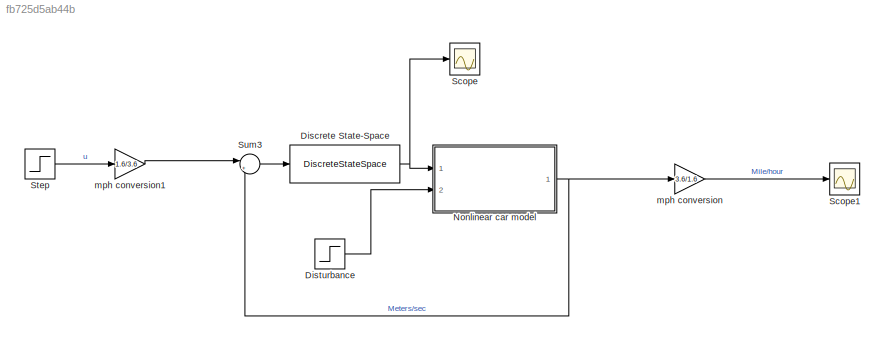
MODEL slx_fb725d5ab44b
KIND model
BLOCK [DiscreteStateSpace] Discrete State-Space
  B = 0.01
  C = 0.9094
  D = 1.15
  SampleTime = 0.01
  X0 = .2606
BLOCK [Step] Disturbance
  After = 0
  SampleTime = 0
  Time = 100
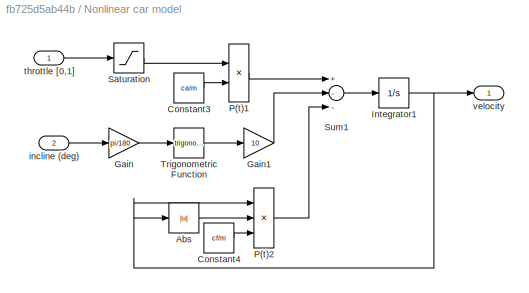
BLOCK [SubSystem] Nonlinear car model
  FunctionWithSeparateData = off
  MaskHideContents = off
  MinAlgLoopOccurrences = off
  Opaque = off
  Ports = [2, 1]
  PropExecContextOutsideSubsystem = off
  RTWSystemCode = Auto
  RequestExecContextInheritance = off
BLOCK [Abs] Nonlinear car model/Abs
BLOCK [Constant] Nonlinear car model/Constant3
  Value = ca/m
BLOCK [Constant] Nonlinear car model/Constant4
  Value = cf/m
BLOCK [Gain] Nonlinear car model/Gain
  Gain = pi/180
BLOCK [Gain] Nonlinear car model/Gain1
  Gain = 10
BLOCK [Integrator] Nonlinear car model/Integrator1
  InitialCondition = 26.67
  LowerSaturationLimit = 0
  Ports = [1, 1]
  UpperSaturationLimit = 1
BLOCK [Product] Nonlinear car model/P(t)1
  Inputs = **
  Ports = [2, 1]
BLOCK [Product] Nonlinear car model/P(t)2
  Inputs = ***
  Ports = [3, 1]
BLOCK [Saturate] Nonlinear car model/Saturation
  InputPortMap = u0
  LowerLimit = -1
  Ports = [1, 1]
  UpperLimit = 3
BLOCK [Sum] Nonlinear car model/Sum1
  Inputs = +--
  Ports = [3, 1]
BLOCK [Trigonometry] Nonlinear car model/Trigonometric Function
  Ports = [1, 1]
BLOCK [Inport] Nonlinear car model/incline (deg)
  IconDisplay = Port number
  Port = 2
BLOCK [Inport] Nonlinear car model/throttle [0,1]
  IconDisplay = Port number
BLOCK [Outport] Nonlinear car model/velocity
  IconDisplay = Port number
BLOCK [Scope] Scope
  DataFormat = StructureWithTime
  Floating = off
  LimitDataPoints = off
  NumInputPorts = 1
  Ports = [1]
  SampleTime = 0
  SaveName = ScopeData1
  ShowLegends = off
BLOCK [Scope] Scope1
  DataFormat = StructureWithTime
  Floating = off
  LimitDataPoints = off
  NumInputPorts = 1
  Ports = [1]
  SampleTime = 0
  ShowLegends = off
  TimeRange = 200
  YMax = 42.5
  YMin = 38.5
BLOCK [Step] Step
  After = 65
  Before = 60
  SampleTime = 0
  Time = 10
BLOCK [Sum] Sum3
  IconShape = round
  InputSameDT = off
  Inputs = |+-
  OutDataTypeStr = Inherit: Inherit via internal rule
  Ports = [2, 1]
  SaturateOnIntegerOverflow = off
BLOCK [Gain] mph conversion
  Gain = 3.6/1.6
BLOCK [Gain] mph conversion1
  Gain = 1.6/3.6
NET Discrete State-Space:1 -> Nonlinear car model:1, Scope:1
LINE Disturbance:1 -> Nonlinear car model:2
LINE Nonlinear car model/Abs:1 -> Nonlinear car model/P(t)2:2
LINE Nonlinear car model/Constant3:1 -> Nonlinear car model/P(t)1:2
LINE Nonlinear car model/Constant4:1 -> Nonlinear car model/P(t)2:3
LINE Nonlinear car model/Gain1:1 -> Nonlinear car model/Sum1:2
LINE Nonlinear car model/Gain:1 -> Nonlinear car model/Trigonometric Function:1
NET Nonlinear car model/Integrator1:1 -> Nonlinear car model/Abs:1, Nonlinear car model/P(t)2:1, Nonlinear car model/velocity:1
LINE Nonlinear car model/P(t)1:1 -> Nonlinear car model/Sum1:1
LINE Nonlinear car model/P(t)2:1 -> Nonlinear car model/Sum1:3
LINE Nonlinear car model/Saturation:1 -> Nonlinear car model/P(t)1:1
LINE Nonlinear car model/Sum1:1 -> Nonlinear car model/Integrator1:1
LINE Nonlinear car model/Trigonometric Function:1 -> Nonlinear car model/Gain1:1
LINE Nonlinear car model/incline (deg):1 -> Nonlinear car model/Gain:1
LINE Nonlinear car model/throttle [0,1]:1 -> Nonlinear car model/Saturation:1
NET Nonlinear car model:1 -> Sum3:2, mph conversion:1
LINE Step:1 -> mph conversion1:1
LINE Sum3:1 -> Discrete State-Space:1
LINE mph conversion1:1 -> Sum3:1
LINE mph conversion:1 -> Scope1:1
note: NET lines group one-source signal fan-out (src -> all destinations, sorted); 1:1 wires keep LINE
